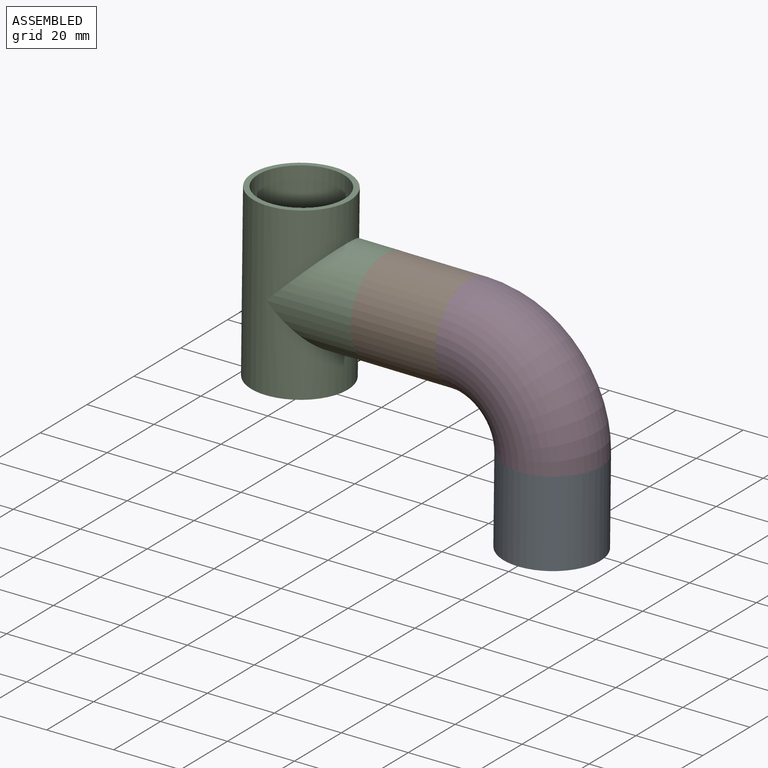
[diagram: assembled view]
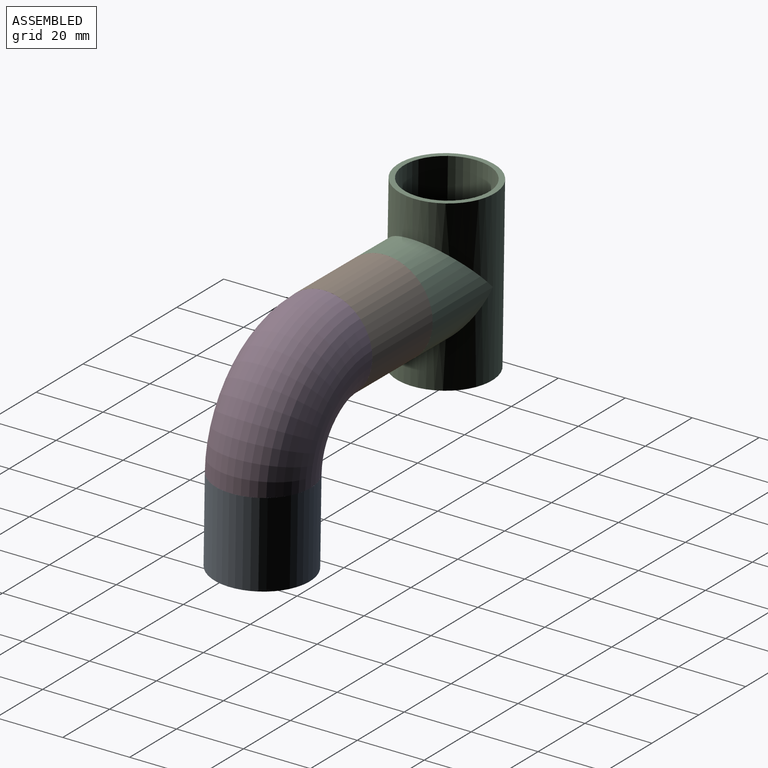
[diagram: assembled view, second angle]
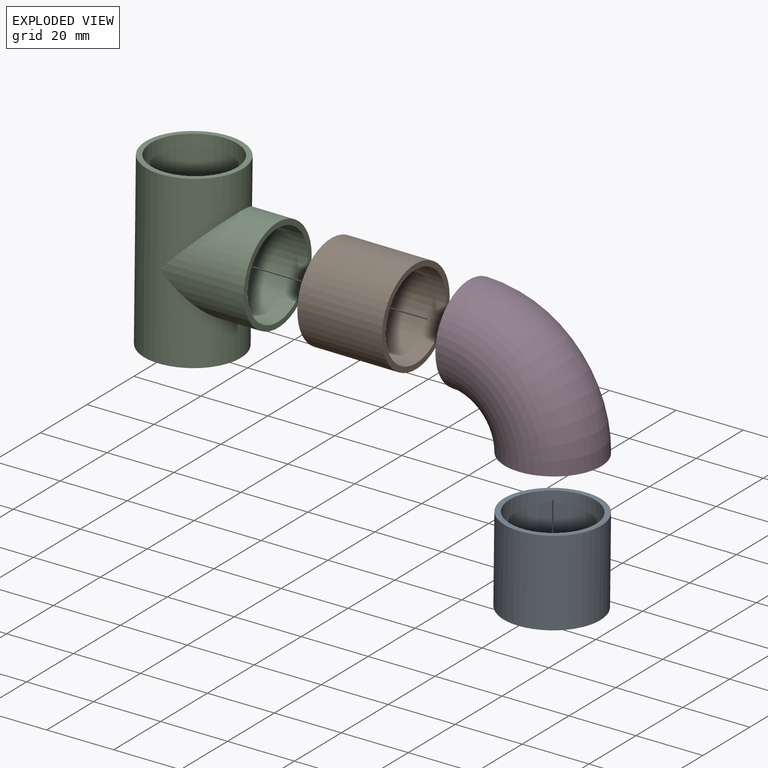
[diagram: exploded view]
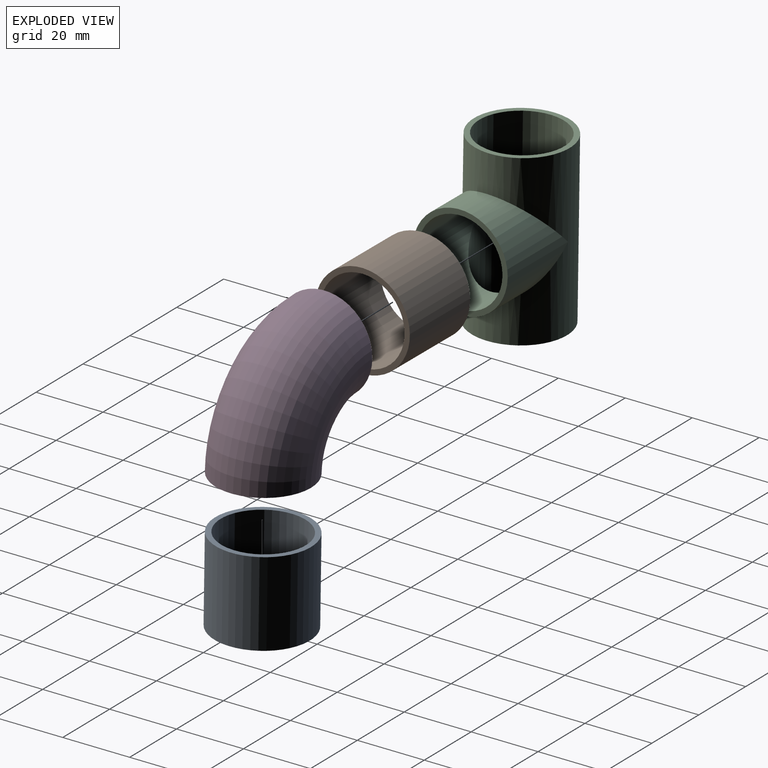
[diagram: exploded view, second angle]
ASSEMBLY  parts=4 mates=3
PART A: 4 faces, bbox 28.6x28.6x25.4 mm
  f0: cylinder r=12.7mm len=25.4mm, axis (0,0,-1), area 2026.8mm2, adj f2,f3
  f1: cylinder r=14.29mm len=28.58mm, axis (0,0,-1), area 2280.2mm2, adj f2,f3
  f2: plane 28.58x28.58mm, normal (0,0,1), area 134.6mm2, adj f0,f1
  f3: plane 28.58x28.58mm, normal (0,0,-1), area 134.6mm2, adj f0,f1
PART B: same geometry as A
PART C: 7 faces, bbox 39.7x28.6x50.8 mm
  f0: cylinder r=12.7mm len=25.4mm, axis (-1,0,0), area 1381.7mm2, adj f1,f5
  f1: cylinder r=12.7mm len=50.8mm, axis (0,0,-1), area 3408.5mm2, adj f0,f3,f4
  f2: cylinder r=14.29mm len=50.8mm, axis (0,0,-1), area 3743.8mm2, adj f3,f4,f6
  f3: plane 28.58x28.58mm, normal (0,0,1), area 134.6mm2, adj f1,f2
  f4: plane 28.58x28.58mm, normal (0,0,-1), area 134.6mm2, adj f1,f2
  f5: plane 28.58x28.58mm, normal (1,0,0), area 134.6mm2, adj f0,f6
  f6: cylinder r=14.29mm len=28.58mm, axis (-1,0,0), area 1463.7mm2, adj f2,f5
PART D: 4 faces, bbox 28.6x43x43 mm
  f0: torus R=25.4mm, axis (-1,0,0), area 3183.7mm2, adj f1,f2
  f1: plane 28.58x28.58mm, normal (0,0,-1), area 134.6mm2, adj f0,f3
  f2: plane 28.58x28.58mm, normal (0,1,0), area 134.6mm2, adj f0,f3
  f3: torus R=25.4mm, axis (-1,0,0), area 3581.7mm2, adj f1,f2
PLACE A rot(axis=(-0.86,0.04,-0.51),1.1deg) t=(102.95,5.57,-40.25)mm
PLACE B rot(axis=(-0.01,-1,0),90deg) t=(77.59,6.61,10.56)mm
PLACE C rot(axis=(-0.86,0.04,-0.51),1.1deg) t=(26.79,7.09,10.59)mm
PLACE D rot(axis=(-0.58,0.57,-0.58),120.9deg) t=(77.59,6.61,10.56)mm
MATE fastened B.f0 <-> D.f1  axis (1,-0.01,0) through (77.59,6.61,10.56)mm
MATE fastened C.f0 <-> B.f0  axis (1,-0.01,0) through (52.19,6.85,10.57)mm
MATE fastened A.f0 <-> D.f2  axis (0,0.02,1) through (102.97,5.97,-14.85)mm
